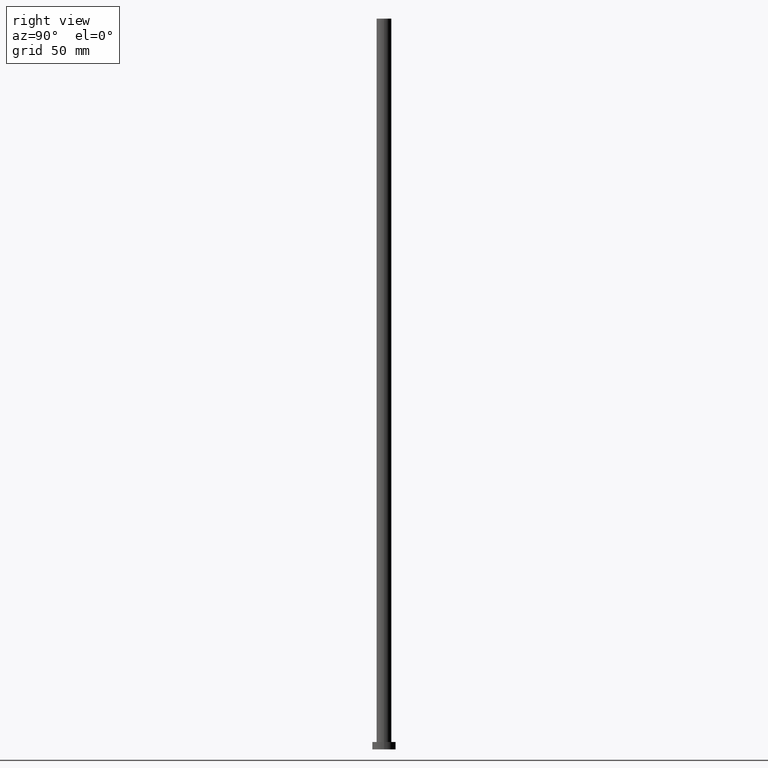
[diagram: clean part render]
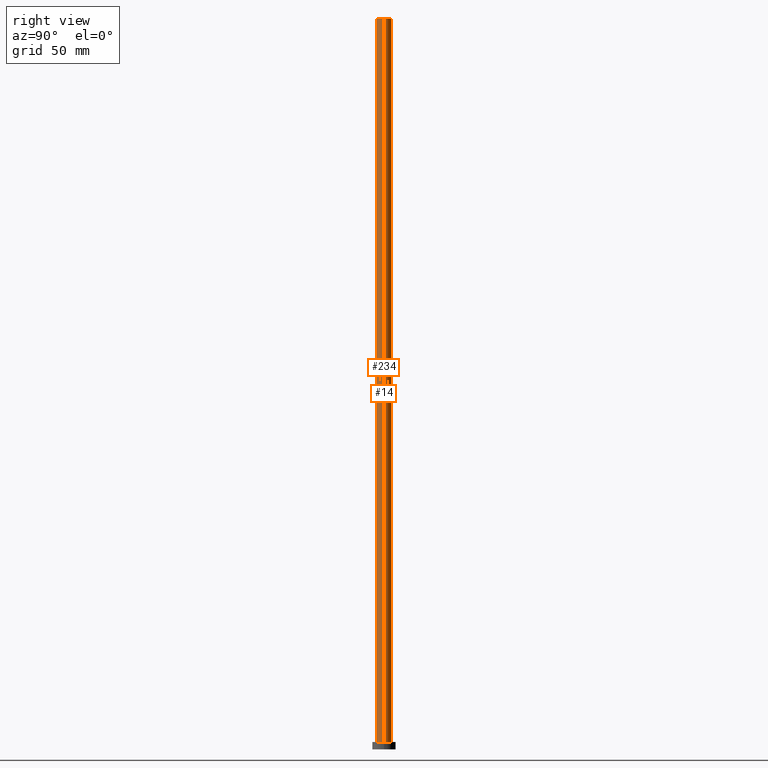
[diagram: same view with one multi-face feature highlighted, each face labeled with its STEP entity id]
A machine part, right view. The highlighted faces form ONE feature: a constant-radius fillet chain: 2 tangent blend faces with common blend radius 5.1 mm. The faces share edges in the B-rep.
Their STEP definitions:
[1] entity #234 (Cylinder):
#28 = CARTESIAN_POINT ( 'NONE',  ( 5.100000000000001421, 6.245698675651502811E-16, 500.0000000000000000 ) ) ;
#31 = ORIENTED_EDGE ( 'NONE', *, *, #189, .T. ) ;
#40 = CARTESIAN_POINT ( 'NONE',  ( 0.000000000000000000, 0.000000000000000000, 500.0000000000000000 ) ) ;
#41 = EDGE_CURVE ( 'NONE', #99, #241, #235, .T. ) ;
#44 = DIRECTION ( 'NONE',  ( 1.000000000000000000, 0.000000000000000000, 0.000000000000000000 ) ) ;
#46 = DIRECTION ( 'NONE',  ( 0.000000000000000000, 0.000000000000000000, 1.000000000000000000 ) ) ;
#48 = DIRECTION ( 'NONE',  ( -1.000000000000000000, 0.000000000000000000, 0.000000000000000000 ) ) ;
#51 = AXIS2_PLACEMENT_3D ( 'NONE', #96, #76, #48 ) ;
#67 = DIRECTION ( 'NONE',  ( -0.000000000000000000, -0.000000000000000000, -1.000000000000000000 ) ) ;
#71 = CARTESIAN_POINT ( 'NONE',  ( -5.100000000000001421, 0.000000000000000000, 5.000000000000000000 ) ) ;
#73 = EDGE_CURVE ( 'NONE', #241, #175, #185, .T. ) ;
#74 = CARTESIAN_POINT ( 'NONE',  ( 5.100000000000001421, 6.245698675651502811E-16, 5.000000000000000000 ) ) ;
#76 = DIRECTION ( 'NONE',  ( -0.000000000000000000, -0.000000000000000000, -1.000000000000000000 ) ) ;
#77 = ORIENTED_EDGE ( 'NONE', *, *, #73, .F. ) ;
#89 = FACE_OUTER_BOUND ( 'NONE', #173, .T. ) ;
#95 = VECTOR ( 'NONE', #67, 1000.000000000000000 ) ;
#96 = CARTESIAN_POINT ( 'NONE',  ( 0.000000000000000000, 0.000000000000000000, 500.0000000000000000 ) ) ;
#99 = VERTEX_POINT ( 'NONE', #182 ) ;
#100 = AXIS2_PLACEMENT_3D ( 'NONE', #40, #180, #44 ) ;
#104 = VERTEX_POINT ( 'NONE', #71 ) ;
#110 = CARTESIAN_POINT ( 'NONE',  ( 5.100000000000001421, 6.245698675651502811E-16, 500.0000000000000000 ) ) ;
#112 = EDGE_CURVE ( 'NONE', #104, #175, #160, .T. ) ;
#113 = LINE ( 'NONE', #228, #211 ) ;
#120 = ORIENTED_EDGE ( 'NONE', *, *, #112, .T. ) ;
#150 = DIRECTION ( 'NONE',  ( -0.000000000000000000, -0.000000000000000000, -1.000000000000000000 ) ) ;
#157 = ORIENTED_EDGE ( 'NONE', *, *, #41, .F. ) ;
#160 = CIRCLE ( 'NONE', #194, 5.100000000000001421 ) ;
#173 = EDGE_LOOP ( 'NONE', ( #77, #157, #31, #120 ) ) ;
#175 = VERTEX_POINT ( 'NONE', #74 ) ;
#180 = DIRECTION ( 'NONE',  ( 0.000000000000000000, 0.000000000000000000, 1.000000000000000000 ) ) ;
#182 = CARTESIAN_POINT ( 'NONE',  ( -5.100000000000001421, 0.000000000000000000, 500.0000000000000000 ) ) ;
#184 = CARTESIAN_POINT ( 'NONE',  ( 0.000000000000000000, 0.000000000000000000, 5.000000000000000000 ) ) ;
#185 = LINE ( 'NONE', #28, #95 ) ;
#189 = EDGE_CURVE ( 'NONE', #99, #104, #113, .T. ) ;
#194 = AXIS2_PLACEMENT_3D ( 'NONE', #184, #46, #209 ) ;
#209 = DIRECTION ( 'NONE',  ( 1.000000000000000000, 0.000000000000000000, 0.000000000000000000 ) ) ;
#211 = VECTOR ( 'NONE', #150, 1000.000000000000000 ) ;
#228 = CARTESIAN_POINT ( 'NONE',  ( -5.100000000000001421, 0.000000000000000000, 500.0000000000000000 ) ) ;
#233 = CYLINDRICAL_SURFACE ( 'NONE', #51, 5.100000000000001421 ) ;
#234 = ADVANCED_FACE ( 'NONE', ( #89 ), #233, .T. ) ;
#235 = CIRCLE ( 'NONE', #100, 5.100000000000001421 ) ;
#241 = VERTEX_POINT ( 'NONE', #110 ) ;
[2] entity #14 (Cylinder):
#5 = ORIENTED_EDGE ( 'NONE', *, *, #33, .F. ) ;
#13 = AXIS2_PLACEMENT_3D ( 'NONE', #247, #171, #227 ) ;
#14 = ADVANCED_FACE ( 'NONE', ( #121 ), #80, .T. ) ;
#22 = AXIS2_PLACEMENT_3D ( 'NONE', #138, #65, #88 ) ;
#28 = CARTESIAN_POINT ( 'NONE',  ( 5.100000000000001421, 6.245698675651502811E-16, 500.0000000000000000 ) ) ;
#33 = EDGE_CURVE ( 'NONE', #241, #99, #201, .T. ) ;
#65 = DIRECTION ( 'NONE',  ( -0.000000000000000000, -0.000000000000000000, -1.000000000000000000 ) ) ;
#67 = DIRECTION ( 'NONE',  ( -0.000000000000000000, -0.000000000000000000, -1.000000000000000000 ) ) ;
#71 = CARTESIAN_POINT ( 'NONE',  ( -5.100000000000001421, 0.000000000000000000, 5.000000000000000000 ) ) ;
#73 = EDGE_CURVE ( 'NONE', #241, #175, #185, .T. ) ;
#74 = CARTESIAN_POINT ( 'NONE',  ( 5.100000000000001421, 6.245698675651502811E-16, 5.000000000000000000 ) ) ;
#80 = CYLINDRICAL_SURFACE ( 'NONE', #22, 5.100000000000001421 ) ;
#84 = EDGE_LOOP ( 'NONE', ( #5, #101, #238, #143 ) ) ;
#86 = EDGE_CURVE ( 'NONE', #175, #104, #242, .T. ) ;
#88 = DIRECTION ( 'NONE',  ( -1.000000000000000000, 0.000000000000000000, 0.000000000000000000 ) ) ;
#95 = VECTOR ( 'NONE', #67, 1000.000000000000000 ) ;
#99 = VERTEX_POINT ( 'NONE', #182 ) ;
#101 = ORIENTED_EDGE ( 'NONE', *, *, #73, .T. ) ;
#104 = VERTEX_POINT ( 'NONE', #71 ) ;
#110 = CARTESIAN_POINT ( 'NONE',  ( 5.100000000000001421, 6.245698675651502811E-16, 500.0000000000000000 ) ) ;
#113 = LINE ( 'NONE', #228, #211 ) ;
#121 = FACE_OUTER_BOUND ( 'NONE', #84, .T. ) ;
#138 = CARTESIAN_POINT ( 'NONE',  ( 0.000000000000000000, 0.000000000000000000, 500.0000000000000000 ) ) ;
#143 = ORIENTED_EDGE ( 'NONE', *, *, #189, .F. ) ;
#146 = DIRECTION ( 'NONE',  ( 0.000000000000000000, 0.000000000000000000, 1.000000000000000000 ) ) ;
#150 = DIRECTION ( 'NONE',  ( -0.000000000000000000, -0.000000000000000000, -1.000000000000000000 ) ) ;
#161 = CARTESIAN_POINT ( 'NONE',  ( 0.000000000000000000, 0.000000000000000000, 500.0000000000000000 ) ) ;
#171 = DIRECTION ( 'NONE',  ( 0.000000000000000000, 0.000000000000000000, 1.000000000000000000 ) ) ;
#175 = VERTEX_POINT ( 'NONE', #74 ) ;
#182 = CARTESIAN_POINT ( 'NONE',  ( -5.100000000000001421, 0.000000000000000000, 500.0000000000000000 ) ) ;
#185 = LINE ( 'NONE', #28, #95 ) ;
#189 = EDGE_CURVE ( 'NONE', #99, #104, #113, .T. ) ;
#199 = AXIS2_PLACEMENT_3D ( 'NONE', #161, #146, #223 ) ;
#201 = CIRCLE ( 'NONE', #199, 5.100000000000001421 ) ;
#211 = VECTOR ( 'NONE', #150, 1000.000000000000000 ) ;
#223 = DIRECTION ( 'NONE',  ( 1.000000000000000000, 0.000000000000000000, 0.000000000000000000 ) ) ;
#227 = DIRECTION ( 'NONE',  ( 1.000000000000000000, 0.000000000000000000, 0.000000000000000000 ) ) ;
#228 = CARTESIAN_POINT ( 'NONE',  ( -5.100000000000001421, 0.000000000000000000, 500.0000000000000000 ) ) ;
#238 = ORIENTED_EDGE ( 'NONE', *, *, #86, .T. ) ;
#241 = VERTEX_POINT ( 'NONE', #110 ) ;
#242 = CIRCLE ( 'NONE', #13, 5.100000000000001421 ) ;
#247 = CARTESIAN_POINT ( 'NONE',  ( 0.000000000000000000, 0.000000000000000000, 5.000000000000000000 ) ) ;